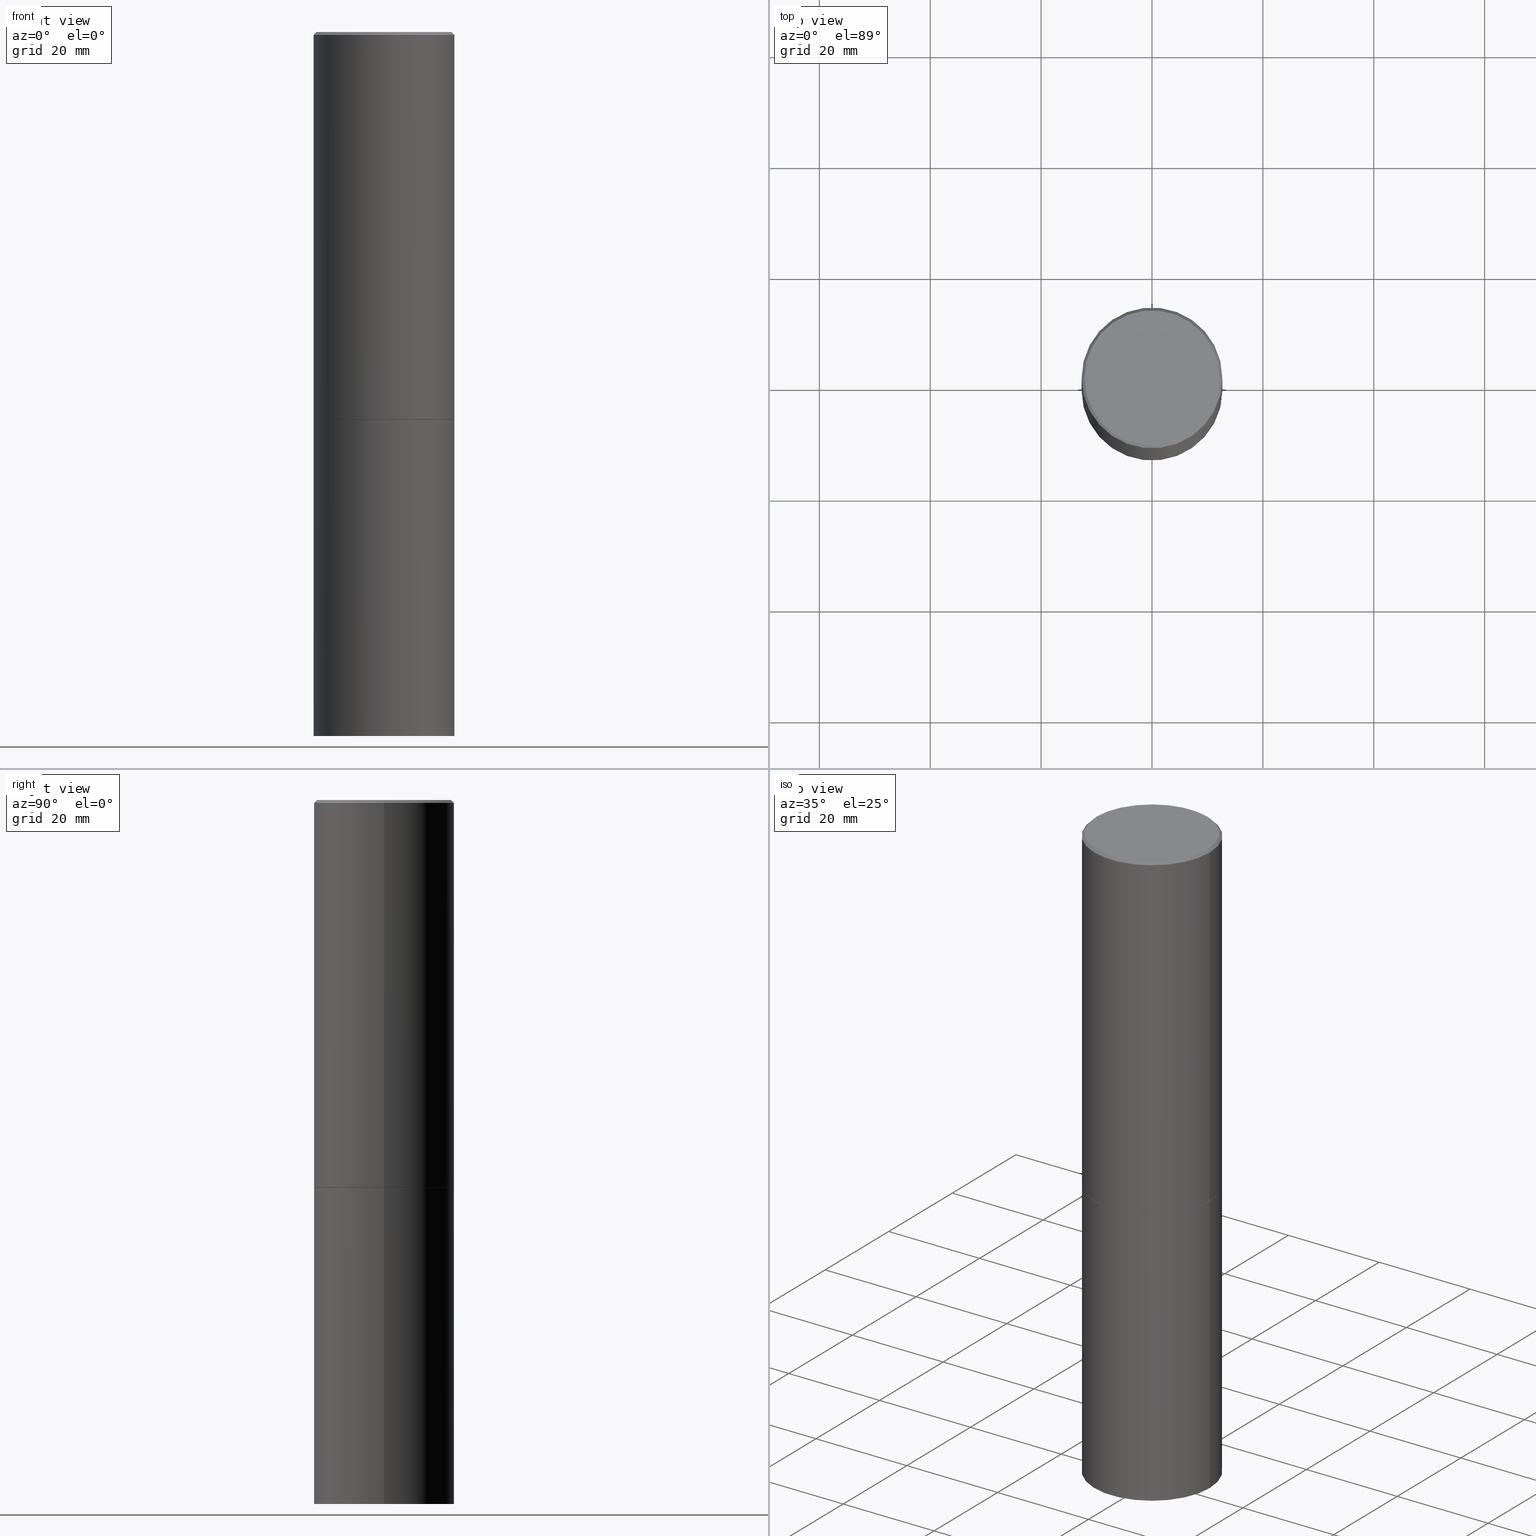
[diagram: canonical four-view strip — front | top / right | iso, engineering-drawing reading convention]
A machine part, canonical four-view strip (front | top / right | iso — engineering-drawing reading convention). The complete STEP part file that produces these views, byte-faithful:
ISO-10303-21;
HEADER;
FILE_DESCRIPTION (( 'STEP AP203' ),
    '1' );
FILE_NAME ('31859.STEP',
    '2024-02-27T13:53:03',
    ( '' ),
    ( '' ),
    'SwSTEP 2.0',
    'SolidWorks 2023',
    '' );
FILE_SCHEMA (( 'CONFIG_CONTROL_DESIGN' ));
ENDSEC;

DATA;
#1 = CALENDAR_DATE ( 2024, 27, 2 ) ;
#2 = ORIENTED_EDGE ( 'NONE', *, *, #217, .T. ) ;
#3 = PRODUCT_RELATED_PRODUCT_CATEGORY ( 'detail', '', ( #93 ) ) ;
#4 = CIRCLE ( 'NONE', #259, 0.5000000000000001110 ) ;
#5 = APPROVAL_DATE_TIME ( #284, #128 ) ;
#6 = VERTEX_POINT ( 'NONE', #264 ) ;
#7 = PERSON_AND_ORGANIZATION ( #96, #14 ) ;
#8 = EDGE_LOOP ( 'NONE', ( #206, #253 ) ) ;
#9 = FACE_OUTER_BOUND ( 'NONE', #306, .T. ) ;
#10 = SECURITY_CLASSIFICATION ( '', '', #90 ) ;
#11 = LINE ( 'NONE', #102, #341 ) ;
#12 = CARTESIAN_POINT ( 'NONE',  ( 4.890937612370299433E-31, -6.982962677686328587E-17, -0.02000000000000010797 ) ) ;
#13 = DIRECTION ( 'NONE',  ( -2.445468806185136877E-29, 3.491481338843145188E-15, 1.000000000000000000 ) ) ;
#14 = ORGANIZATION ( 'UNSPECIFIED', 'UNSPECIFIED', '' ) ;
#15 = FACE_OUTER_BOUND ( 'NONE', #36, .T. ) ;
#16 = CARTESIAN_POINT ( 'NONE',  ( 0.5000000000000000000, -2.094888803305886324E-14, -5.000000000000000000 ) ) ;
#17 = CARTESIAN_POINT ( 'NONE',  ( -0.4999999999999996114, 3.421651712066267296E-15, -0.02000000000000010797 ) ) ;
#18 = ADVANCED_FACE ( 'NONE', ( #9 ), #338, .F. ) ;
#19 = ORIENTED_EDGE ( 'NONE', *, *, #319, .F. ) ;
#20 = CLOSED_SHELL ( 'NONE', ( #231, #129, #154, #55, #246, #276, #164, #18 ) ) ;
#21 = DIRECTION ( 'NONE',  ( 2.438088387897960049E-29, -3.491481338843145188E-15, -1.000000000000000000 ) ) ;
#22 = CARTESIAN_POINT ( 'NONE',  ( 0.4999999999999996114, -3.500078625662626318E-15, -0.02000000000000010797 ) ) ;
#23 = ADVANCED_BREP_SHAPE_REPRESENTATION ( '31859', ( #317, #64, #92 ), #244 ) ;
#24 = DIRECTION ( 'NONE',  ( 1.000000000000000000, -6.982962677686269077E-15, 0.000000000000000000 ) ) ;
#25 = VERTEX_POINT ( 'NONE', #308 ) ;
#26 = PERSON_AND_ORGANIZATION ( #96, #14 ) ;
#27 = CIRCLE ( 'NONE', #352, 0.5000000000000000000 ) ;
#28 = COORDINATED_UNIVERSAL_TIME_OFFSET ( 5, 0, .BEHIND. ) ;
#29 = DIRECTION ( 'NONE',  ( -1.000000000000000000, 6.982962677686265922E-15, -4.876176775795935793E-29 ) ) ;
#30 = PERSON_AND_ORGANIZATION ( #96, #14 ) ;
#31 = EDGE_CURVE ( 'NONE', #6, #181, #71, .T. ) ;
#32 = CARTESIAN_POINT ( 'NONE',  ( 6.725039217009124520E-29, -9.601573681818649859E-15, -2.750000000000000000 ) ) ;
#33 = ORIENTED_EDGE ( 'NONE', *, *, #219, .F. ) ;
#34 = AXIS2_PLACEMENT_3D ( 'NONE', #269, #103, #218 ) ;
#35 = APPROVAL_ROLE ( '' ) ;
#36 = EDGE_LOOP ( 'NONE', ( #366, #236, #87, #201 ) ) ;
#37 = ORIENTED_EDGE ( 'NONE', *, *, #359, .F. ) ;
#38 = DIRECTION ( 'NONE',  ( 1.000000000000000000, -6.982962677686266711E-15, 4.876036955247133888E-29 ) ) ;
#39 = CARTESIAN_POINT ( 'NONE',  ( 0.4999999999999996114, -3.500078625662626318E-15, -0.02000000000000010797 ) ) ;
#40 = CYLINDRICAL_SURFACE ( 'NONE', #301, 0.5000000000000000000 ) ;
#41 = ADVANCED_FACE ( 'NONE', ( #148 ), #115, .T. ) ;
#42 = LINE ( 'NONE', #127, #136 ) ;
#43 = CIRCLE ( 'NONE', #290, 0.5000000000000000000 ) ;
#44 = FACE_OUTER_BOUND ( 'NONE', #118, .T. ) ;
#45 = CARTESIAN_POINT ( 'NONE',  ( 0.5000000000000001110, -1.308956353932294179E-14, -2.749000000000000110 ) ) ;
#46 = EDGE_LOOP ( 'NONE', ( #227, #172 ) ) ;
#47 = DIRECTION ( 'NONE',  ( 1.000000000000000000, -6.982962677686269077E-15, 0.000000000000000000 ) ) ;
#48 = AXIS2_PLACEMENT_3D ( 'NONE', #325, #69, #267 ) ;
#49 = ORIENTED_EDGE ( 'NONE', *, *, #300, .F. ) ;
#50 = LINE ( 'NONE', #362, #196 ) ;
#51 =( NAMED_UNIT ( * ) PLANE_ANGLE_UNIT ( ) SI_UNIT ( $, .RADIAN. ) );
#52 = ORIENTED_EDGE ( 'NONE', *, *, #300, .T. ) ;
#53 = LOCAL_TIME ( 8, 53, 3.000000000000000000, #365 ) ;
#54 = APPROVAL_STATUS ( 'not_yet_approved' ) ;
#55 = ADVANCED_FACE ( 'NONE', ( #287 ), #348, .T. ) ;
#56 = DIRECTION ( 'NONE',  ( -2.445468806185136597E-29, 3.491481338843145583E-15, 1.000000000000000000 ) ) ;
#57 = ORIENTED_EDGE ( 'NONE', *, *, #217, .F. ) ;
#58 = MECHANICAL_CONTEXT ( 'NONE', #121, 'mechanical' ) ;
#59 = EDGE_LOOP ( 'NONE', ( #310, #278, #283, #37 ) ) ;
#60 = LOCAL_TIME ( 8, 53, 3.000000000000000000, #114 ) ;
#61 = ORIENTED_EDGE ( 'NONE', *, *, #292, .T. ) ;
#62 = CARTESIAN_POINT ( 'NONE',  ( -0.5000000000000000000, -9.976776509216688154E-15, -5.000000000000000000 ) ) ;
#63 = DIRECTION ( 'NONE',  ( -2.445468806185136597E-29, 3.491481338843145583E-15, 1.000000000000000000 ) ) ;
#64 = MANIFOLD_SOLID_BREP ( 'Body-Move/Copy2[2]', #20 ) ;
#65 = VECTOR ( 'NONE', #197, 39.37007874015748143 ) ;
#66 = CC_DESIGN_DATE_AND_TIME_ASSIGNMENT ( #207, #344, ( #10 ) ) ;
#67 = FACE_OUTER_BOUND ( 'NONE', #59, .T. ) ;
#68 = EDGE_CURVE ( 'NONE', #155, #288, #205, .T. ) ;
#69 = DIRECTION ( 'NONE',  ( -2.445468806185136597E-29, 3.491481338843145583E-15, 1.000000000000000000 ) ) ;
#70 = FACE_OUTER_BOUND ( 'NONE', #237, .T. ) ;
#71 = CIRCLE ( 'NONE', #254, 0.5000000000000000000 ) ;
#72 = APPROVAL_PERSON_ORGANIZATION ( #262, #128, #311 ) ;
#73 = CARTESIAN_POINT ( 'NONE',  ( 3.491481338843200408E-15, 0.4999999999999903411, -2.750000000000001332 ) ) ;
#74 = ORIENTED_EDGE ( 'NONE', *, *, #98, .T. ) ;
#75 = CARTESIAN_POINT ( 'NONE',  ( 6.722593748202941159E-29, -9.598082200479808430E-15, -2.749000000000000110 ) ) ;
#76 = EDGE_LOOP ( 'NONE', ( #19, #258, #169, #49 ) ) ;
#77 = DIRECTION ( 'NONE',  ( 1.000000000000000000, -6.982962677686265133E-15, 0.000000000000000000 ) ) ;
#78 = ORIENTED_EDGE ( 'NONE', *, *, #359, .T. ) ;
#79 = CONICAL_SURFACE ( 'NONE', #34, 0.4999999999999996114, 0.7853981633974468357 ) ;
#80 = LOCAL_TIME ( 8, 53, 3.000000000000000000, #286 ) ;
#81 = FACE_OUTER_BOUND ( 'NONE', #76, .T. ) ;
#82 = ADVANCED_FACE ( 'NONE', ( #270 ), #243, .T. ) ;
#83 =( CONVERSION_BASED_UNIT ( 'INCH', #279 ) LENGTH_UNIT ( ) NAMED_UNIT ( #210 ) );
#84 = PERSON_AND_ORGANIZATION ( #96, #14 ) ;
#85 = ORIENTED_EDGE ( 'NONE', *, *, #204, .T. ) ;
#86 = CC_DESIGN_PERSON_AND_ORGANIZATION_ASSIGNMENT ( #84, #149, ( #132 ) ) ;
#87 = ORIENTED_EDGE ( 'NONE', *, *, #31, .F. ) ;
#88 = DIRECTION ( 'NONE',  ( -1.000000000000000000, 6.982962677686266711E-15, 0.000000000000000000 ) ) ;
#89 = ORIENTED_EDGE ( 'NONE', *, *, #313, .F. ) ;
#90 = SECURITY_CLASSIFICATION_LEVEL ( 'unclassified' ) ;
#91 = VERTEX_POINT ( 'NONE', #349 ) ;
#92 = AXIS2_PLACEMENT_3D ( 'NONE', #107, #309, #151 ) ;
#93 = PRODUCT ( '31859', '31859', '', ( #58 ) ) ;
#94 = CARTESIAN_POINT ( 'NONE',  ( 0.000000000000000000, 0.000000000000000000, 0.000000000000000000 ) ) ;
#95 = DIRECTION ( 'NONE',  ( -2.438088387897960049E-29, 3.491481338843145188E-15, 1.000000000000000000 ) ) ;
#96 = PERSON ( 'UNSPECIFIED', 'UNSPECIFIED', 'UNSPECIFIED', ('UNSPECIFIED'), ('UNSPECIFIED'), ('UNSPECIFIED') ) ;
#97 = CC_DESIGN_PERSON_AND_ORGANIZATION_ASSIGNMENT ( #26, #146, ( #10 ) ) ;
#98 = EDGE_CURVE ( 'NONE', #91, #25, #242, .T. ) ;
#99 = CARTESIAN_POINT ( 'NONE',  ( 6.725039217009125641E-29, -9.601573681818653015E-15, -2.750000000000000444 ) ) ;
#100 = VECTOR ( 'NONE', #211, 39.37007874015748143 ) ;
#101 = AXIS2_PLACEMENT_3D ( 'NONE', #183, #289, #38 ) ;
#102 = CARTESIAN_POINT ( 'NONE',  ( -0.5000000000000000000, 3.552713678800500929E-15, -2.459467545127452891E-29 ) ) ;
#103 = DIRECTION ( 'NONE',  ( 2.445468806185136597E-29, -3.491481338843145583E-15, -1.000000000000000000 ) ) ;
#104 = AXIS2_PLACEMENT_3D ( 'NONE', #212, #159, #157 ) ;
#105 = DIRECTION ( 'NONE',  ( 1.000000000000000000, -6.982962677686266711E-15, 0.000000000000000000 ) ) ;
#106 = ORIENTED_EDGE ( 'NONE', *, *, #251, .F. ) ;
#107 = CARTESIAN_POINT ( 'NONE',  ( 0.000000000000000000, 0.000000000000000000, 0.000000000000000000 ) ) ;
#108 = DIRECTION ( 'NONE',  ( -2.445468806185136597E-29, 3.491481338843145583E-15, 1.000000000000000000 ) ) ;
#109 = DESIGN_CONTEXT ( 'detailed design', #142, 'design' ) ;
#110 = AXIS2_PLACEMENT_3D ( 'NONE', #187, #216, #161 ) ;
#111 = LOCAL_TIME ( 8, 53, 3.000000000000000000, #177 ) ;
#112 = DIRECTION ( 'NONE',  ( -2.445468806185136597E-29, 3.491481338843145583E-15, 1.000000000000000000 ) ) ;
#113 = CC_DESIGN_PERSON_AND_ORGANIZATION_ASSIGNMENT ( #174, #171, ( #241 ) ) ;
#114 = COORDINATED_UNIVERSAL_TIME_OFFSET ( 5, 0, .BEHIND. ) ;
#115 = CYLINDRICAL_SURFACE ( 'NONE', #214, 0.5000000000000000000 ) ;
#116 = APPROVAL_ROLE ( '' ) ;
#117 = AXIS2_PLACEMENT_3D ( 'NONE', #345, #282, #29 ) ;
#118 = EDGE_LOOP ( 'NONE', ( #61, #316, #33, #358 ) ) ;
#119 = AXIS2_PLACEMENT_3D ( 'NONE', #137, #250, #105 ) ;
#120 = APPROVAL_STATUS ( 'not_yet_approved' ) ;
#121 = APPLICATION_CONTEXT ( 'configuration controlled 3d designs of mechanical parts and assemblies' ) ;
#122 = ORIENTED_EDGE ( 'NONE', *, *, #202, .T. ) ;
#123 = DATE_AND_TIME ( #228, #60 ) ;
#124 = VERTEX_POINT ( 'NONE', #163 ) ;
#125 = ORIENTED_EDGE ( 'NONE', *, *, #192, .T. ) ;
#126 = AXIS2_PLACEMENT_3D ( 'NONE', #143, #333, #24 ) ;
#127 = CARTESIAN_POINT ( 'NONE',  ( 0.5000000000000000000, -3.491481338843133355E-15, 2.438088387897967896E-29 ) ) ;
#128 = APPROVAL ( #120, 'UNSPECIFIED' ) ;
#129 = ADVANCED_FACE ( 'NONE', ( #44 ), #238, .T. ) ;
#130 = LINE ( 'NONE', #39, #265 ) ;
#131 = DIRECTION ( 'NONE',  ( -1.000000000000000000, 6.982962677686265922E-15, -4.876176775795935793E-29 ) ) ;
#132 = PRODUCT_DEFINITION_FORMATION_WITH_SPECIFIED_SOURCE ( 'ANY', '', #93, .NOT_KNOWN. ) ;
#133 = PLANE ( 'NONE',  #152 ) ;
#134 = CYLINDRICAL_SURFACE ( 'NONE', #249, 0.4999999999999998335 ) ;
#135 = DIRECTION ( 'NONE',  ( 1.000000000000000000, -6.982962677686267499E-15, 4.876176775795936353E-29 ) ) ;
#136 = VECTOR ( 'NONE', #321, 39.37007874015748143 ) ;
#137 = CARTESIAN_POINT ( 'NONE',  ( 6.725039217009124520E-29, -9.601573681818649859E-15, -2.750000000000000000 ) ) ;
#138 = EDGE_CURVE ( 'NONE', #91, #298, #350, .T. ) ;
#139 = ADVANCED_FACE ( 'NONE', ( #15 ), #40, .T. ) ;
#140 = PLANE ( 'NONE',  #170 ) ;
#141 = EDGE_LOOP ( 'NONE', ( #74, #312, #194, #257 ) ) ;
#142 = APPLICATION_CONTEXT ( 'configuration controlled 3d designs of mechanical parts and assemblies' ) ;
#143 = CARTESIAN_POINT ( 'NONE',  ( 6.725039217009125641E-29, -9.601573681818653015E-15, -2.750000000000000444 ) ) ;
#144 = UNCERTAINTY_MEASURE_WITH_UNIT (LENGTH_MEASURE( 1.000000000000000082E-05 ), #83, 'distance_accuracy_value', 'NONE');
#145 = CC_DESIGN_APPROVAL ( #128, ( #241 ) ) ;
#146 = PERSON_AND_ORGANIZATION_ROLE ( 'classification_officer' ) ;
#147 = APPROVAL_DATE_TIME ( #364, #330 ) ;
#148 = FACE_OUTER_BOUND ( 'NONE', #332, .T. ) ;
#149 = PERSON_AND_ORGANIZATION_ROLE ( 'design_supplier' ) ;
#150 = CARTESIAN_POINT ( 'NONE',  ( 4.890937612370299433E-31, -6.982962677686328587E-17, -0.02000000000000010797 ) ) ;
#151 = DIRECTION ( 'NONE',  ( 1.000000000000000000, 0.000000000000000000, 0.000000000000000000 ) ) ;
#152 = AXIS2_PLACEMENT_3D ( 'NONE', #326, #95, #213 ) ;
#153 = ORIENTED_EDGE ( 'NONE', *, *, #202, .F. ) ;
#154 = ADVANCED_FACE ( 'NONE', ( #67 ), #79, .T. ) ;
#155 = VERTEX_POINT ( 'NONE', #272 ) ;
#156 = VERTEX_POINT ( 'NONE', #62 ) ;
#157 = DIRECTION ( 'NONE',  ( 1.000000000000000000, -6.982962677686266711E-15, 4.876036955247133888E-29 ) ) ;
#158 = CC_DESIGN_SECURITY_CLASSIFICATION ( #10, ( #132 ) ) ;
#159 = DIRECTION ( 'NONE',  ( -2.445468806185136597E-29, 3.491481338843145583E-15, 1.000000000000000000 ) ) ;
#160 = DIRECTION ( 'NONE',  ( -2.445468806185136597E-29, 3.491481338843145583E-15, 1.000000000000000000 ) ) ;
#161 = DIRECTION ( 'NONE',  ( 1.000000000000000000, -6.982962677686269077E-15, 0.000000000000000000 ) ) ;
#162 = APPROVAL_PERSON_ORGANIZATION ( #7, #330, #35 ) ;
#163 = CARTESIAN_POINT ( 'NONE',  ( 0.4799999999999995381, -3.396558832296479338E-15, 1.280553747032483033E-17 ) ) ;
#164 = ADVANCED_FACE ( 'NONE', ( #70 ), #133, .F. ) ;
#165 = PRODUCT_DEFINITION_SHAPE ( 'NONE', 'NONE',  #241 ) ;
#166 = AXIS2_PLACEMENT_3D ( 'NONE', #266, #186, #131 ) ;
#167 = AXIS2_PLACEMENT_3D ( 'NONE', #75, #108, #77 ) ;
#168 = FACE_OUTER_BOUND ( 'NONE', #263, .T. ) ;
#169 = ORIENTED_EDGE ( 'NONE', *, *, #138, .T. ) ;
#170 = AXIS2_PLACEMENT_3D ( 'NONE', #73, #21, #357 ) ;
#171 = PERSON_AND_ORGANIZATION_ROLE ( 'creator' ) ;
#172 = ORIENTED_EDGE ( 'NONE', *, *, #268, .F. ) ;
#173 = DIRECTION ( 'NONE',  ( 1.000000000000000000, -6.982962677686266711E-15, 4.876176775795935793E-29 ) ) ;
#174 = PERSON_AND_ORGANIZATION ( #96, #14 ) ;
#175 = DIRECTION ( 'NONE',  ( -2.445468806185136877E-29, 3.491481338843145188E-15, 1.000000000000000000 ) ) ;
#176 = APPROVAL ( #256, 'UNSPECIFIED' ) ;
#177 = COORDINATED_UNIVERSAL_TIME_OFFSET ( 5, 0, .BEHIND. ) ;
#178 = CONICAL_SURFACE ( 'NONE', #126, 0.4989999999999999991, 0.7853981633973118326 ) ;
#179 = DIRECTION ( 'NONE',  ( 1.000000000000000000, -6.982962677686266711E-15, 0.000000000000000000 ) ) ;
#180 = CALENDAR_DATE ( 2024, 27, 2 ) ;
#181 = VERTEX_POINT ( 'NONE', #353 ) ;
#182 = EDGE_CURVE ( 'NONE', #156, #181, #11, .T. ) ;
#183 = CARTESIAN_POINT ( 'NONE',  ( -3.131554243005659264E-46, 4.471029511141341874E-32, 1.280553747030123384E-17 ) ) ;
#184 = DIRECTION ( 'NONE',  ( 1.000000000000000000, -6.982962677686266711E-15, 0.000000000000000000 ) ) ;
#185 = CIRCLE ( 'NONE', #167, 0.5000000000000001110 ) ;
#186 = DIRECTION ( 'NONE',  ( 2.438088387897960049E-29, -3.491481338843145188E-15, -1.000000000000000000 ) ) ;
#187 = CARTESIAN_POINT ( 'NONE',  ( 6.725039217009125641E-29, -9.601573681818653015E-15, -2.750000000000000444 ) ) ;
#188 = EDGE_CURVE ( 'NONE', #298, #234, #295, .T. ) ;
#189 = DIRECTION ( 'NONE',  ( -2.445468806185136877E-29, 3.491481338843145188E-15, 1.000000000000000000 ) ) ;
#190 = AXIS2_PLACEMENT_3D ( 'NONE', #150, #343, #88 ) ;
#191 = CARTESIAN_POINT ( 'NONE',  ( -0.4999999999999996114, 3.421651712066267296E-15, -0.02000000000000010797 ) ) ;
#192 = EDGE_CURVE ( 'NONE', #124, #223, #208, .T. ) ;
#193 = FACE_OUTER_BOUND ( 'NONE', #8, .T. ) ;
#194 = ORIENTED_EDGE ( 'NONE', *, *, #292, .F. ) ;
#195 = VECTOR ( 'NONE', #13, 39.37007874015748143 ) ;
#196 = VECTOR ( 'NONE', #222, 39.37007874015748143 ) ;
#197 = DIRECTION ( 'NONE',  ( -0.7071067811865464625, 2.468850131082245622E-15, -0.7071067811865485719 ) ) ;
#198 = DATE_TIME_ROLE ( 'creation_date' ) ;
#199 = ORIENTED_EDGE ( 'NONE', *, *, #98, .F. ) ;
#200 = CIRCLE ( 'NONE', #48, 0.4999999999999996114 ) ;
#201 = ORIENTED_EDGE ( 'NONE', *, *, #204, .F. ) ;
#202 = EDGE_CURVE ( 'NONE', #223, #124, #323, .T. ) ;
#203 = PERSON_AND_ORGANIZATION_ROLE ( 'design_owner' ) ;
#204 = EDGE_CURVE ( 'NONE', #209, #6, #42, .T. ) ;
#205 = LINE ( 'NONE', #285, #322 ) ;
#206 = ORIENTED_EDGE ( 'NONE', *, *, #31, .T. ) ;
#207 = DATE_AND_TIME ( #235, #111 ) ;
#208 = CIRCLE ( 'NONE', #101, 0.4799999999999995381 ) ;
#209 = VERTEX_POINT ( 'NONE', #16 ) ;
#210 = DIMENSIONAL_EXPONENTS ( 1.000000000000000000, 0.000000000000000000, 0.000000000000000000, 0.000000000000000000, 0.000000000000000000, 0.000000000000000000, 0.000000000000000000 ) ;
#211 = DIRECTION ( 'NONE',  ( 0.7071067811864509833, -2.468850131081245741E-15, 0.7071067811866440511 ) ) ;
#212 = CARTESIAN_POINT ( 'NONE',  ( -3.131554243005659264E-46, 4.471029511141341874E-32, 1.280553747030123384E-17 ) ) ;
#213 = DIRECTION ( 'NONE',  ( 1.000000000000000000, -6.982962677686265922E-15, 4.876176775795935793E-29 ) ) ;
#214 = AXIS2_PLACEMENT_3D ( 'NONE', #229, #56, #173 ) ;
#215 = CONICAL_SURFACE ( 'NONE', #296, 0.4989999999999999991, 0.7853981633973118326 ) ;
#216 = DIRECTION ( 'NONE',  ( -2.445468806185136597E-29, 3.491481338843145583E-15, 1.000000000000000000 ) ) ;
#217 = EDGE_CURVE ( 'NONE', #288, #234, #200, .T. ) ;
#218 = DIRECTION ( 'NONE',  ( -1.000000000000000000, 6.982962677686266711E-15, 0.000000000000000000 ) ) ;
#219 = EDGE_CURVE ( 'NONE', #234, #288, #303, .T. ) ;
#220 = CC_DESIGN_DATE_AND_TIME_ASSIGNMENT ( #281, #198, ( #241 ) ) ;
#221 = DIRECTION ( 'NONE',  ( 1.000000000000000000, -6.982962677686269077E-15, 0.000000000000000000 ) ) ;
#222 = DIRECTION ( 'NONE',  ( -0.7071067811864509833, 7.493145998870005484E-15, 0.7071067811866440511 ) ) ;
#223 = VERTEX_POINT ( 'NONE', #291 ) ;
#224 = DIRECTION ( 'NONE',  ( 1.000000000000000000, -6.982962677686266711E-15, 0.000000000000000000 ) ) ;
#225 = CIRCLE ( 'NONE', #315, 0.4989999999999999991 ) ;
#226 = DIRECTION ( 'NONE',  ( -2.445468806185136597E-29, 3.491481338843145583E-15, 1.000000000000000000 ) ) ;
#227 = ORIENTED_EDGE ( 'NONE', *, *, #320, .F. ) ;
#228 = CALENDAR_DATE ( 2024, 27, 2 ) ;
#229 = CARTESIAN_POINT ( 'NONE',  ( 0.000000000000000000, 0.000000000000000000, 0.000000000000000000 ) ) ;
#230 = EDGE_CURVE ( 'NONE', #124, #234, #130, .T. ) ;
#231 = ADVANCED_FACE ( 'NONE', ( #351 ), #215, .T. ) ;
#232 = AXIS2_PLACEMENT_3D ( 'NONE', #12, #63, #184 ) ;
#233 = PERSON_AND_ORGANIZATION ( #96, #14 ) ;
#234 = VERTEX_POINT ( 'NONE', #22 ) ;
#235 = CALENDAR_DATE ( 2024, 27, 2 ) ;
#236 = ORIENTED_EDGE ( 'NONE', *, *, #182, .T. ) ;
#237 = EDGE_LOOP ( 'NONE', ( #199, #89 ) ) ;
#238 = CYLINDRICAL_SURFACE ( 'NONE', #314, 0.4999999999999998335 ) ;
#239 = CARTESIAN_POINT ( 'NONE',  ( 0.000000000000000000, 0.000000000000000000, 0.000000000000000000 ) ) ;
#240 = DIRECTION ( 'NONE',  ( 0.7071067811865464625, -7.319954787623252890E-15, -0.7071067811865485719 ) ) ;
#241 = PRODUCT_DEFINITION ( 'UNKNOWN', '', #132, #109 ) ;
#242 = CIRCLE ( 'NONE', #110, 0.4989999999999999991 ) ;
#243 = PLANE ( 'NONE',  #166 ) ;
#244 =( GEOMETRIC_REPRESENTATION_CONTEXT ( 3 ) GLOBAL_UNCERTAINTY_ASSIGNED_CONTEXT ( ( #144 ) ) GLOBAL_UNIT_ASSIGNED_CONTEXT ( ( #83, #51, #361 ) ) REPRESENTATION_CONTEXT ( 'NONE', 'WORKASPACE' ) );
#245 = DIRECTION ( 'NONE',  ( -2.445468806185136597E-29, 3.491481338843145583E-15, 1.000000000000000000 ) ) ;
#246 = ADVANCED_FACE ( 'NONE', ( #168 ), #134, .T. ) ;
#247 = DIRECTION ( 'NONE',  ( -2.445468806185136597E-29, 3.491481338843145583E-15, 1.000000000000000000 ) ) ;
#248 = EDGE_LOOP ( 'NONE', ( #329, #153, #78, #2 ) ) ;
#249 = AXIS2_PLACEMENT_3D ( 'NONE', #304, #273, #135 ) ;
#250 = DIRECTION ( 'NONE',  ( -2.445468806185136597E-29, 3.491481338843145583E-15, 1.000000000000000000 ) ) ;
#251 = EDGE_CURVE ( 'NONE', #181, #6, #280, .T. ) ;
#252 = CARTESIAN_POINT ( 'NONE',  ( 6.722593748202941159E-29, -9.598082200479808430E-15, -2.749000000000000110 ) ) ;
#253 = ORIENTED_EDGE ( 'NONE', *, *, #251, .T. ) ;
#254 = AXIS2_PLACEMENT_3D ( 'NONE', #32, #261, #179 ) ;
#255 = APPLICATION_PROTOCOL_DEFINITION ( 'international standard', 'config_control_design', 1994, #142 ) ;
#256 = APPROVAL_STATUS ( 'not_yet_approved' ) ;
#257 = ORIENTED_EDGE ( 'NONE', *, *, #138, .F. ) ;
#258 = ORIENTED_EDGE ( 'NONE', *, *, #313, .T. ) ;
#259 = AXIS2_PLACEMENT_3D ( 'NONE', #252, #247, #275 ) ;
#260 = CALENDAR_DATE ( 2024, 27, 2 ) ;
#261 = DIRECTION ( 'NONE',  ( -2.445468806185136597E-29, 3.491481338843145583E-15, 1.000000000000000000 ) ) ;
#262 = PERSON_AND_ORGANIZATION ( #96, #14 ) ;
#263 = EDGE_LOOP ( 'NONE', ( #336, #52, #347, #57 ) ) ;
#264 = CARTESIAN_POINT ( 'NONE',  ( 0.5000000000000000000, -1.309305502066178321E-14, -2.750000000000000000 ) ) ;
#265 = VECTOR ( 'NONE', #240, 39.37007874015748143 ) ;
#266 = CARTESIAN_POINT ( 'NONE',  ( 3.491481338843255234E-15, 0.4999999999999825140, -5.000000000000002665 ) ) ;
#267 = DIRECTION ( 'NONE',  ( 1.000000000000000000, -6.982962677686266711E-15, 0.000000000000000000 ) ) ;
#268 = EDGE_CURVE ( 'NONE', #156, #209, #43, .T. ) ;
#269 = CARTESIAN_POINT ( 'NONE',  ( 4.890937612370299433E-31, -6.982962677686328587E-17, -0.02000000000000010797 ) ) ;
#270 = FACE_OUTER_BOUND ( 'NONE', #46, .T. ) ;
#271 = CC_DESIGN_APPROVAL ( #176, ( #132 ) ) ;
#272 = CARTESIAN_POINT ( 'NONE',  ( -0.5000000000000001110, -1.281242234827831779E-15, -2.749000000000000110 ) ) ;
#273 = DIRECTION ( 'NONE',  ( -2.445468806185136597E-29, 3.491481338843145583E-15, 1.000000000000000000 ) ) ;
#274 = APPLICATION_PROTOCOL_DEFINITION ( 'international standard', 'config_control_design', 1994, #121 ) ;
#275 = DIRECTION ( 'NONE',  ( 1.000000000000000000, -6.982962677686265133E-15, 0.000000000000000000 ) ) ;
#276 = ADVANCED_FACE ( 'NONE', ( #81 ), #178, .T. ) ;
#277 = CARTESIAN_POINT ( 'NONE',  ( 6.725039217009125641E-29, -9.601573681818653015E-15, -2.750000000000000444 ) ) ;
#278 = ORIENTED_EDGE ( 'NONE', *, *, #230, .T. ) ;
#279 = LENGTH_MEASURE_WITH_UNIT ( LENGTH_MEASURE( 0.02539999999999999897 ), #299 );
#280 = CIRCLE ( 'NONE', #119, 0.5000000000000000000 ) ;
#281 = DATE_AND_TIME ( #1, #328 ) ;
#282 = DIRECTION ( 'NONE',  ( 2.438088387897960049E-29, -3.491481338843145188E-15, -1.000000000000000000 ) ) ;
#283 = ORIENTED_EDGE ( 'NONE', *, *, #219, .T. ) ;
#284 = DATE_AND_TIME ( #260, #80 ) ;
#285 = CARTESIAN_POINT ( 'NONE',  ( -0.4999999999999998335, 3.552713678800499746E-15, -2.459467545127452330E-29 ) ) ;
#286 = COORDINATED_UNIVERSAL_TIME_OFFSET ( 5, 0, .BEHIND. ) ;
#287 = FACE_OUTER_BOUND ( 'NONE', #248, .T. ) ;
#288 = VERTEX_POINT ( 'NONE', #17 ) ;
#289 = DIRECTION ( 'NONE',  ( -2.445468806185136597E-29, 3.491481338843145583E-15, 1.000000000000000000 ) ) ;
#290 = AXIS2_PLACEMENT_3D ( 'NONE', #327, #112, #224 ) ;
#291 = CARTESIAN_POINT ( 'NONE',  ( -0.4799999999999995381, 3.386736898677836041E-15, 1.280553747027767124E-17 ) ) ;
#292 = EDGE_CURVE ( 'NONE', #298, #155, #185, .T. ) ;
#293 = CARTESIAN_POINT ( 'NONE',  ( 0.4989999999999999991, -1.308607205798410036E-14, -2.750000000000000444 ) ) ;
#294 = DIRECTION ( 'NONE',  ( 1.000000000000000000, -6.982962677686267499E-15, 4.876176775795936353E-29 ) ) ;
#295 = LINE ( 'NONE', #318, #195 ) ;
#296 = AXIS2_PLACEMENT_3D ( 'NONE', #99, #324, #47 ) ;
#297 = DIRECTION ( 'NONE',  ( 1.000000000000000000, -6.982962677686266711E-15, 0.000000000000000000 ) ) ;
#298 = VERTEX_POINT ( 'NONE', #45 ) ;
#299 =( LENGTH_UNIT ( ) NAMED_UNIT ( * ) SI_UNIT ( $, .METRE. ) );
#300 = EDGE_CURVE ( 'NONE', #155, #298, #4, .T. ) ;
#301 = AXIS2_PLACEMENT_3D ( 'NONE', #239, #245, #354 ) ;
#302 = ADVANCED_FACE ( 'NONE', ( #193 ), #140, .F. ) ;
#303 = CIRCLE ( 'NONE', #232, 0.4999999999999996114 ) ;
#304 = CARTESIAN_POINT ( 'NONE',  ( 0.000000000000000000, 0.000000000000000000, 0.000000000000000000 ) ) ;
#305 = DIRECTION ( 'NONE',  ( -2.445468806185136597E-29, 3.491481338843145583E-15, 1.000000000000000000 ) ) ;
#306 = EDGE_LOOP ( 'NONE', ( #122, #125 ) ) ;
#307 = CC_DESIGN_APPROVAL ( #330, ( #10 ) ) ;
#308 = CARTESIAN_POINT ( 'NONE',  ( -0.4989999999999999991, -6.050666976027529114E-15, -2.750000000000000444 ) ) ;
#309 = DIRECTION ( 'NONE',  ( 0.000000000000000000, 0.000000000000000000, 1.000000000000000000 ) ) ;
#310 = ORIENTED_EDGE ( 'NONE', *, *, #192, .F. ) ;
#311 = APPROVAL_ROLE ( '' ) ;
#312 = ORIENTED_EDGE ( 'NONE', *, *, #319, .T. ) ;
#313 = EDGE_CURVE ( 'NONE', #25, #91, #225, .T. ) ;
#314 = AXIS2_PLACEMENT_3D ( 'NONE', #94, #160, #294 ) ;
#315 = AXIS2_PLACEMENT_3D ( 'NONE', #277, #226, #221 ) ;
#316 = ORIENTED_EDGE ( 'NONE', *, *, #68, .T. ) ;
#317 = MANIFOLD_SOLID_BREP ( 'Body-Move/Copy2[1]', #356 ) ;
#318 = CARTESIAN_POINT ( 'NONE',  ( 0.4999999999999998335, -3.491481338843132566E-15, 2.438088387897967336E-29 ) ) ;
#319 = EDGE_CURVE ( 'NONE', #25, #155, #50, .T. ) ;
#320 = EDGE_CURVE ( 'NONE', #209, #156, #27, .T. ) ;
#321 = DIRECTION ( 'NONE',  ( -2.445468806185136877E-29, 3.491481338843145188E-15, 1.000000000000000000 ) ) ;
#322 = VECTOR ( 'NONE', #175, 39.37007874015748143 ) ;
#323 = CIRCLE ( 'NONE', #104, 0.4799999999999995381 ) ;
#324 = DIRECTION ( 'NONE',  ( -2.445468806185136597E-29, 3.491481338843145583E-15, 1.000000000000000000 ) ) ;
#325 = CARTESIAN_POINT ( 'NONE',  ( 4.890937612370299433E-31, -6.982962677686328587E-17, -0.02000000000000010797 ) ) ;
#326 = CARTESIAN_POINT ( 'NONE',  ( 6.725039217009124520E-29, -9.601573681818649859E-15, -2.750000000000000000 ) ) ;
#327 = CARTESIAN_POINT ( 'NONE',  ( 1.222734403092568523E-28, -1.745740669421572989E-14, -5.000000000000000000 ) ) ;
#328 = LOCAL_TIME ( 8, 53, 3.000000000000000000, #28 ) ;
#329 = ORIENTED_EDGE ( 'NONE', *, *, #230, .F. ) ;
#330 = APPROVAL ( #54, 'UNSPECIFIED' ) ;
#331 = CC_DESIGN_PERSON_AND_ORGANIZATION_ASSIGNMENT ( #30, #203, ( #93 ) ) ;
#332 = EDGE_LOOP ( 'NONE', ( #340, #363, #85, #106 ) ) ;
#333 = DIRECTION ( 'NONE',  ( -2.445468806185136597E-29, 3.491481338843145583E-15, 1.000000000000000000 ) ) ;
#334 = APPROVAL_PERSON_ORGANIZATION ( #233, #176, #116 ) ;
#335 = CARTESIAN_POINT ( 'NONE',  ( 1.222734403092568523E-28, -1.745740669421572989E-14, -5.000000000000000000 ) ) ;
#336 = ORIENTED_EDGE ( 'NONE', *, *, #68, .F. ) ;
#337 = APPROVAL_DATE_TIME ( #123, #176 ) ;
#338 = PLANE ( 'NONE',  #117 ) ;
#339 = PERSON_AND_ORGANIZATION ( #96, #14 ) ;
#340 = ORIENTED_EDGE ( 'NONE', *, *, #182, .F. ) ;
#341 = VECTOR ( 'NONE', #189, 39.37007874015748143 ) ;
#342 = SHAPE_DEFINITION_REPRESENTATION ( #165, #23 ) ;
#343 = DIRECTION ( 'NONE',  ( 2.445468806185136597E-29, -3.491481338843145583E-15, -1.000000000000000000 ) ) ;
#344 = DATE_TIME_ROLE ( 'classification_date' ) ;
#345 = CARTESIAN_POINT ( 'NONE',  ( 3.351822085289404392E-15, 0.4799999999999995381, -1.669508273909557670E-15 ) ) ;
#346 = PERSON_AND_ORGANIZATION_ROLE ( 'creator' ) ;
#347 = ORIENTED_EDGE ( 'NONE', *, *, #188, .T. ) ;
#348 = CONICAL_SURFACE ( 'NONE', #190, 0.4999999999999996114, 0.7853981633974468357 ) ;
#349 = CARTESIAN_POINT ( 'NONE',  ( 0.4989999999999999991, -1.308607205798410036E-14, -2.750000000000000444 ) ) ;
#350 = LINE ( 'NONE', #293, #100 ) ;
#351 = FACE_OUTER_BOUND ( 'NONE', #141, .T. ) ;
#352 = AXIS2_PLACEMENT_3D ( 'NONE', #335, #305, #297 ) ;
#353 = CARTESIAN_POINT ( 'NONE',  ( -0.5000000000000000000, -9.976776509216688154E-15, -2.750000000000000000 ) ) ;
#354 = DIRECTION ( 'NONE',  ( 1.000000000000000000, -6.982962677686266711E-15, 4.876176775795935793E-29 ) ) ;
#355 = LINE ( 'NONE', #191, #65 ) ;
#356 = CLOSED_SHELL ( 'NONE', ( #139, #82, #302, #41 ) ) ;
#357 = DIRECTION ( 'NONE',  ( -1.000000000000000000, 6.982962677686265922E-15, -4.876176775795935793E-29 ) ) ;
#358 = ORIENTED_EDGE ( 'NONE', *, *, #188, .F. ) ;
#359 = EDGE_CURVE ( 'NONE', #223, #288, #355, .T. ) ;
#360 = CC_DESIGN_PERSON_AND_ORGANIZATION_ASSIGNMENT ( #339, #346, ( #132 ) ) ;
#361 =( NAMED_UNIT ( * ) SI_UNIT ( $, .STERADIAN. ) SOLID_ANGLE_UNIT ( ) );
#362 = CARTESIAN_POINT ( 'NONE',  ( -0.4989999999999999991, -6.055965430375752305E-15, -2.750000000000000444 ) ) ;
#363 = ORIENTED_EDGE ( 'NONE', *, *, #268, .T. ) ;
#364 = DATE_AND_TIME ( #180, #53 ) ;
#365 = COORDINATED_UNIVERSAL_TIME_OFFSET ( 5, 0, .BEHIND. ) ;
#366 = ORIENTED_EDGE ( 'NONE', *, *, #320, .T. ) ;
ENDSEC;
END-ISO-10303-21;
